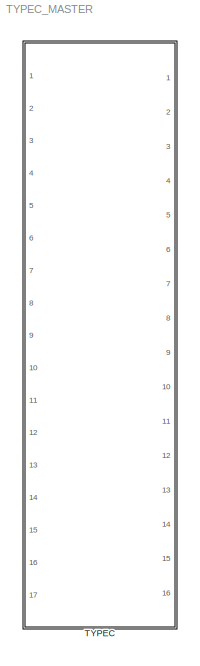
MODEL TYPEC_MASTER
KIND library
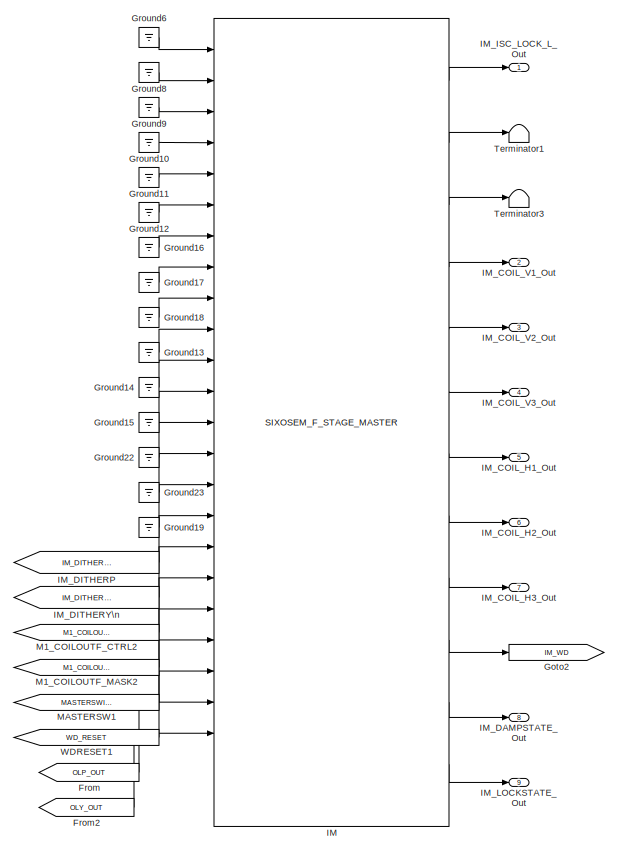
[diagram: TYPEC - part 1/3, top left region]
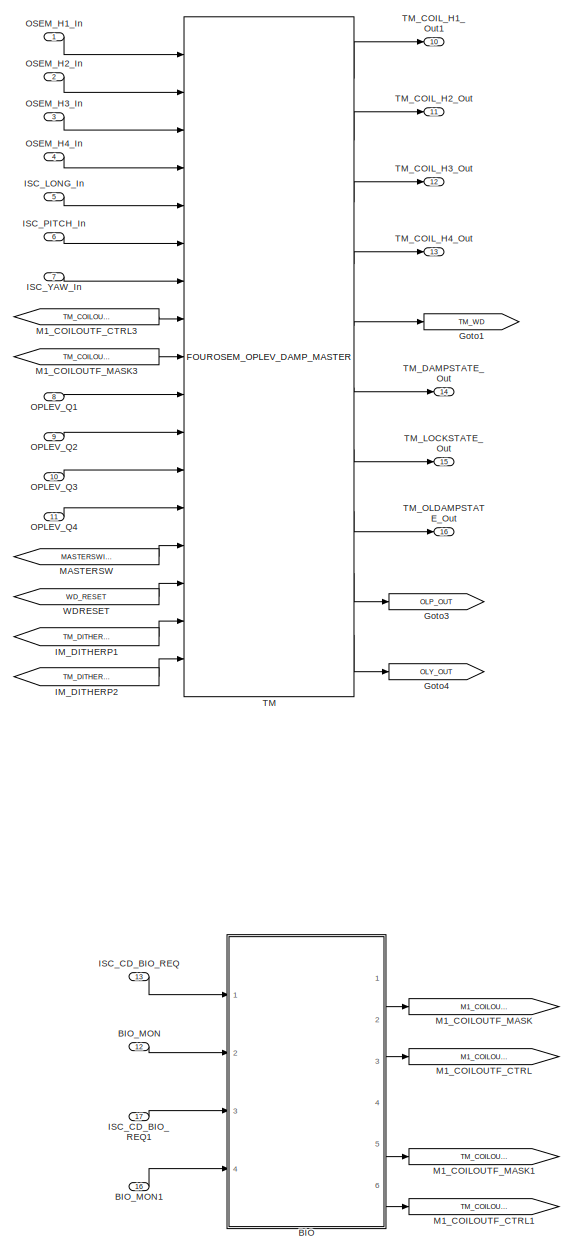
[diagram: TYPEC - part 2/3, bottom left region]
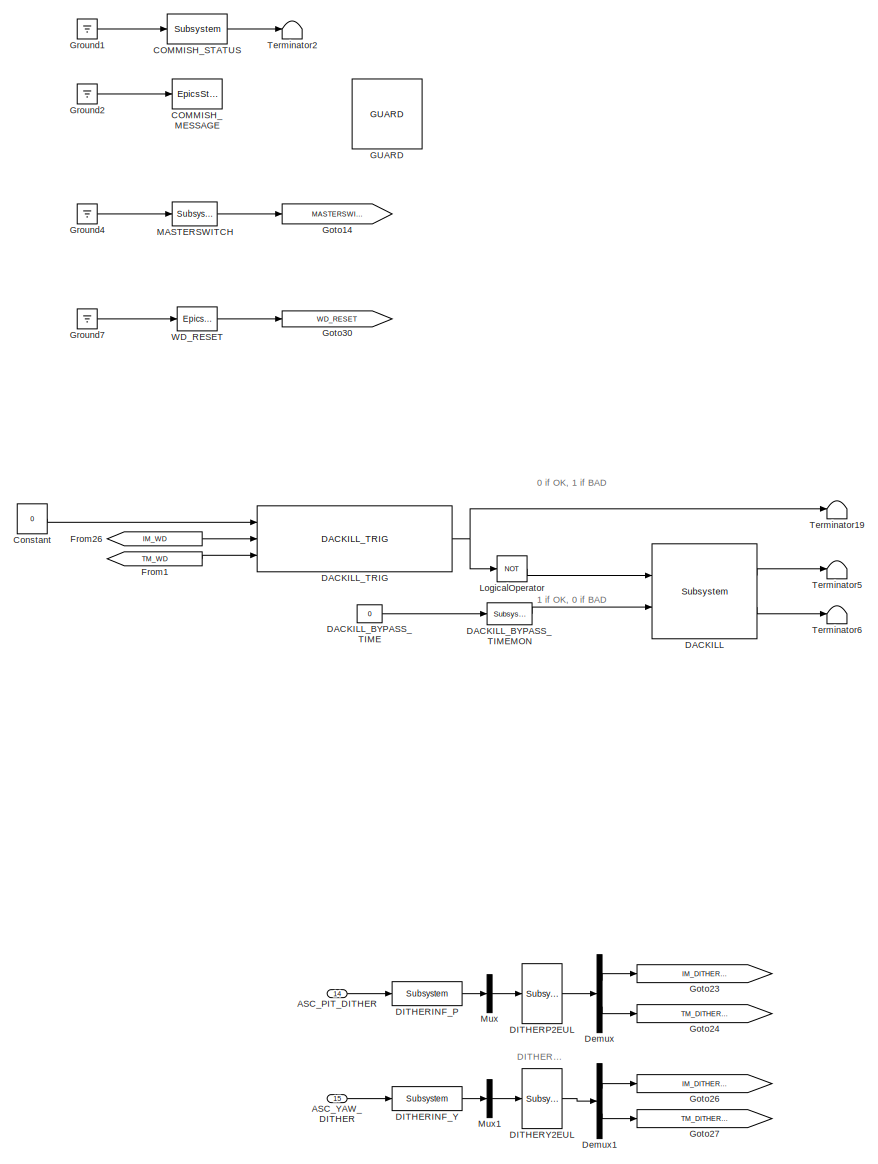
[diagram: TYPEC - part 3/3, bottom right region]
BLOCK [SubSystem] TYPEC
  AttributesFormatString = %<Description>
  Description = TYPEC MASTER
  Ports = [17, 16]
  RequestExecContextInheritance = off
  SID = 132
  Variant = off
BLOCK [Inport] TYPEC/ASC_PIT_DITHER
  IconDisplay = Port number
  Port = 14
  SID = 146
BLOCK [Inport] TYPEC/ASC_YAW_DITHER
  IconDisplay = Port number
  Port = 15
  SID = 147
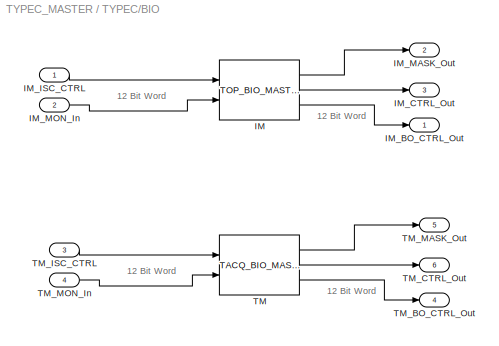
BLOCK [SubSystem] TYPEC/BIO
  Ports = [4, 6]
  RequestExecContextInheritance = off
  SID = 150
  Variant = off
BLOCK [Reference] TYPEC/BIO/IM  REF=STATE_BIO_MASTER/TOP_BIO_MASTER
  Ports = [2, 3]
  SID = 155
  SourceBlock = STATE_BIO_MASTER/TOP_BIO_MASTER
  SourceType = SubSystem
BLOCK [Outport] TYPEC/BIO/IM_BO_CTRL_Out
  IconDisplay = Port number
  SID = 157
BLOCK [Outport] TYPEC/BIO/IM_CTRL_Out
  IconDisplay = Port number
  Port = 3
  SID = 159
BLOCK [Inport] TYPEC/BIO/IM_ISC_CTRL
  IconDisplay = Port number
  SID = 151
BLOCK [Outport] TYPEC/BIO/IM_MASK_Out
  IconDisplay = Port number
  Port = 2
  SID = 158
BLOCK [Inport] TYPEC/BIO/IM_MON_In
  IconDisplay = Port number
  Port = 2
  SID = 152
BLOCK [Reference] TYPEC/BIO/TM  REF=STATE_BIO_MASTER/TACQ_BIO_MASTER
  Ports = [2, 3]
  SID = 156
  SourceBlock = STATE_BIO_MASTER/TACQ_BIO_MASTER
  SourceType = SubSystem
BLOCK [Outport] TYPEC/BIO/TM_BO_CTRL_Out
  IconDisplay = Port number
  Port = 4
  SID = 160
BLOCK [Outport] TYPEC/BIO/TM_CTRL_Out
  IconDisplay = Port number
  Port = 6
  SID = 162
BLOCK [Inport] TYPEC/BIO/TM_ISC_CTRL
  IconDisplay = Port number
  Port = 3
  SID = 153
BLOCK [Outport] TYPEC/BIO/TM_MASK_Out
  IconDisplay = Port number
  Port = 5
  SID = 161
BLOCK [Inport] TYPEC/BIO/TM_MON_In
  IconDisplay = Port number
  Port = 4
  SID = 154
BLOCK [Inport] TYPEC/BIO_MON
  IconDisplay = Port number
  Port = 12
  SID = 144
BLOCK [Inport] TYPEC/BIO_MON1
  IconDisplay = Port number
  Port = 16
  SID = 148
BLOCK [Reference] TYPEC/COMMISH_MESSAGE  REF=cdsEpicsStringIn/EpicsStringIn
  AttributesFormatString = %<Tag>
  Description = cdsEpicsStringIn
  Ports = [1]
  SID = 167
  SourceBlock = cdsEpicsStringIn/EpicsStringIn
  SourceType = SubSystem
  Tag = cdsEpicsStringIn
BLOCK [Reference] TYPEC/COMMISH_STATUS  REF=cdsEpicsBinIn/Subsystem
  AttributesFormatString = %<Tag>
  Description = Purpose:                                                                            \nCreate an EPICS binary (0 or 1) input channel to the FE realtime controls.          \n                                                                                    \nOperation:                                                                          \nOutputs value from an EPICS ai record. Value is binary i...<+252ch>
  Ports = [1, 1]
  SID = 168
  SourceBlock = cdsEpicsBinIn/Subsystem
  SourceType = SubSystem
  Tag = cdsEpicsBinIn
BLOCK [Constant] TYPEC/Constant
  SID = 169
  Value = 0
BLOCK [Reference] TYPEC/DACKILL  REF=cdsDacKill/Subsystem
  AttributesFormatString = %<Description>
  Description = cdsDacKill
  Ports = [2, 2]
  SID = 170
  SourceBlock = cdsDacKill/Subsystem
  SourceType = SubSystem
BLOCK [Constant] TYPEC/DACKILL_BYPASS_TIME
  SID = 171
  Value = 0
BLOCK [Reference] TYPEC/DACKILL_BYPASS_TIMEMON  REF=cdsEpicsOut/Subsystem
  AttributesFormatString = %<Tag>
  Description = Purpose:                                          \nOutput a FE signal to an EPICS channel.           \n                                                  \nOperation:                                        \nTakes input value and passes it to EPICS record.  \n                                                  \nUsage:                                            \nName the part with the desired EPICS...<+14ch>
  Ports = [1, 1]
  SID = 172
  SourceBlock = cdsEpicsOut/Subsystem
  SourceType = SubSystem
  Tag = cdsEpicsOutput
BLOCK [Reference] TYPEC/DACKILL_TRIG  REF=VIS_LIB/DACKILL_TRIG
  Ports = [3, 1]
  SID = 173
  SourceBlock = VIS_LIB/DACKILL_TRIG
  SourceType = SubSystem
BLOCK [Reference] TYPEC/DITHERINF_P  REF=cdsFilt/Subsystem
  AttributesFormatString = %<Tag>
  Description = Purpose:                                                                                                                                                                                                                                  \nStandard CDS IIR filter module.                                                                                                                                     ...<+1302ch>
  Ports = [1, 1]
  SID = 174
  SourceBlock = cdsFilt/Subsystem
  SourceType = SubSystem
  Tag = cdsFilt
BLOCK [Reference] TYPEC/DITHERINF_Y  REF=cdsFilt/Subsystem
  AttributesFormatString = %<Tag>
  Description = Purpose:                                                                                                                                                                                                                                  \nStandard CDS IIR filter module.                                                                                                                                     ...<+1302ch>
  Ports = [1, 1]
  SID = 175
  SourceBlock = cdsFilt/Subsystem
  SourceType = SubSystem
  Tag = cdsFilt
BLOCK [Reference] TYPEC/DITHERP2EUL  REF=cdsMuxMatrix/Subsystem
  AttributesFormatString = %<Tag>
  Description = Any size matrix. Inputs and outputs must be connected using Mux and Demux parts.
  Ports = [1, 1]
  SID = 176
  SourceBlock = cdsMuxMatrix/Subsystem
  SourceType = SubSystem
  Tag = cdsMuxMatrix
BLOCK [Reference] TYPEC/DITHERY2EUL  REF=cdsMuxMatrix/Subsystem
  AttributesFormatString = %<Tag>
  Description = Any size matrix. Inputs and outputs must be connected using Mux and Demux parts.
  Ports = [1, 1]
  SID = 177
  SourceBlock = cdsMuxMatrix/Subsystem
  SourceType = SubSystem
  Tag = cdsMuxMatrix
BLOCK [Demux] TYPEC/Demux
  DisplayOption = bar
  Outputs = 2
  Ports = [1, 2]
  SID = 178
BLOCK [Demux] TYPEC/Demux1
  DisplayOption = bar
  Outputs = 2
  Ports = [1, 2]
  SID = 179
BLOCK [From] TYPEC/From
  GotoTag = OLP_OUT
  SID = 180
BLOCK [From] TYPEC/From1
  CloseFcn = tagdialog Close
  GotoTag = TM_WD
  SID = 181
BLOCK [From] TYPEC/From2
  GotoTag = OLY_OUT
  SID = 182
BLOCK [From] TYPEC/From26
  CloseFcn = tagdialog Close
  GotoTag = IM_WD
  SID = 183
BLOCK [Reference] TYPEC/GUARD  REF=ISC_common/GUARD
  Ports = []
  SID = 184
  SourceBlock = ISC_common/GUARD
  SourceType = SubSystem
BLOCK [Goto] TYPEC/Goto1
  GotoTag = TM_WD
  SID = 185
BLOCK [Goto] TYPEC/Goto14
  GotoTag = MASTERSWITCH
  SID = 186
BLOCK [Goto] TYPEC/Goto2
  GotoTag = IM_WD
  SID = 187
BLOCK [Goto] TYPEC/Goto23
  GotoTag = IM_DITHER_PIT
  SID = 188
BLOCK [Goto] TYPEC/Goto24
  GotoTag = TM_DITHER_PIT
  SID = 189
BLOCK [Goto] TYPEC/Goto26
  GotoTag = IM_DITHER_YAW
  SID = 190
BLOCK [Goto] TYPEC/Goto27
  GotoTag = TM_DITHER_YAW
  SID = 191
BLOCK [Goto] TYPEC/Goto3
  GotoTag = OLP_OUT
  SID = 192
BLOCK [Goto] TYPEC/Goto30
  GotoTag = WD_RESET
  SID = 193
BLOCK [Goto] TYPEC/Goto4
  GotoTag = OLY_OUT
  SID = 194
BLOCK [Ground] TYPEC/Ground1
  SID = 195
BLOCK [Ground] TYPEC/Ground10
  SID = 196
BLOCK [Ground] TYPEC/Ground11
  SID = 197
BLOCK [Ground] TYPEC/Ground12
  SID = 198
BLOCK [Ground] TYPEC/Ground13
  SID = 199
BLOCK [Ground] TYPEC/Ground14
  SID = 200
BLOCK [Ground] TYPEC/Ground15
  SID = 201
BLOCK [Ground] TYPEC/Ground16
  SID = 202
BLOCK [Ground] TYPEC/Ground17
  SID = 203
BLOCK [Ground] TYPEC/Ground18
  SID = 204
BLOCK [Ground] TYPEC/Ground19
  SID = 205
BLOCK [Ground] TYPEC/Ground2
  SID = 206
BLOCK [Ground] TYPEC/Ground22
  SID = 207
BLOCK [Ground] TYPEC/Ground23
  SID = 208
BLOCK [Ground] TYPEC/Ground4
  SID = 209
BLOCK [Ground] TYPEC/Ground6
  SID = 210
BLOCK [Ground] TYPEC/Ground7
  SID = 211
BLOCK [Ground] TYPEC/Ground8
  SID = 212
BLOCK [Ground] TYPEC/Ground9
  SID = 213
BLOCK [Reference] TYPEC/IM  REF=SIXOSEM_F_STAGE_MASTER/SIXOSEM_F_STAGE_MASTER
  Description = SIXOSEMSTAGE_FACE_MASTER
  Ports = [25, 12]
  SID = 214
  SourceBlock = SIXOSEM_F_STAGE_MASTER/SIXOSEM_F_STAGE_MASTER
  SourceType = SubSystem
BLOCK [Outport] TYPEC/IM_COIL_H1_Out
  IconDisplay = Port number
  Port = 5
  SID = 247
BLOCK [Outport] TYPEC/IM_COIL_H2_Out
  IconDisplay = Port number
  Port = 6
  SID = 248
BLOCK [Outport] TYPEC/IM_COIL_H3_Out
  IconDisplay = Port number
  Port = 7
  SID = 249
BLOCK [Outport] TYPEC/IM_COIL_V1_Out
  IconDisplay = Port number
  Port = 2
  SID = 244
BLOCK [Outport] TYPEC/IM_COIL_V2_Out
  IconDisplay = Port number
  Port = 3
  SID = 245
BLOCK [Outport] TYPEC/IM_COIL_V3_Out
  IconDisplay = Port number
  Port = 4
  SID = 246
BLOCK [Outport] TYPEC/IM_DAMPSTATE_Out
  IconDisplay = Port number
  Port = 8
  SID = 250
BLOCK [From] TYPEC/IM_DITHERP
  CloseFcn = tagdialog Close
  GotoTag = IM_DITHER_PIT
  SID = 215
BLOCK [From] TYPEC/IM_DITHERP1
  CloseFcn = tagdialog Close
  GotoTag = TM_DITHER_PIT
  SID = 216
BLOCK [From] TYPEC/IM_DITHERP2
  CloseFcn = tagdialog Close
  GotoTag = TM_DITHER_YAW
  SID = 217
BLOCK [From] TYPEC/IM_DITHERY\n
  CloseFcn = tagdialog Close
  GotoTag = IM_DITHER_YAW
  SID = 218
BLOCK [Outport] TYPEC/IM_ISC_LOCK_L_Out
  IconDisplay = Port number
  SID = 243
BLOCK [Outport] TYPEC/IM_LOCKSTATE_Out
  IconDisplay = Port number
  Port = 9
  SID = 251
BLOCK [Inport] TYPEC/ISC_CD_BIO_REQ
  IconDisplay = Port number
  Port = 13
  SID = 145
BLOCK [Inport] TYPEC/ISC_CD_BIO_REQ1
  IconDisplay = Port number
  Port = 17
  SID = 149
BLOCK [Inport] TYPEC/ISC_LONG_In
  IconDisplay = Port number
  Port = 5
  SID = 137
BLOCK [Inport] TYPEC/ISC_PITCH_In
  IconDisplay = Port number
  Port = 6
  SID = 138
BLOCK [Inport] TYPEC/ISC_YAW_In
  IconDisplay = Port number
  Port = 7
  SID = 139
BLOCK [Logic] TYPEC/LogicalOperator
  AllPortsSameDT = off
  Operator = NOT
  OutDataTypeStr = boolean
  Ports = [1, 1]
  SID = 219
BLOCK [Goto] TYPEC/M1_COILOUTF_CTRL
  GotoTag = M1_COILOUTF_CTRL
  SID = 220
BLOCK [Goto] TYPEC/M1_COILOUTF_CTRL1
  GotoTag = TM_COILOUTF_CTRL
  SID = 221
BLOCK [From] TYPEC/M1_COILOUTF_CTRL2
  CloseFcn = tagdialog Close
  GotoTag = M1_COILOUTF_CTRL
  SID = 222
BLOCK [From] TYPEC/M1_COILOUTF_CTRL3
  CloseFcn = tagdialog Close
  GotoTag = TM_COILOUTF_CTRL
  SID = 223
BLOCK [Goto] TYPEC/M1_COILOUTF_MASK
  GotoTag = M1_COILOUTF_MASK
  SID = 224
BLOCK [Goto] TYPEC/M1_COILOUTF_MASK1
  GotoTag = TM_COILOUTF_MASK
  SID = 225
BLOCK [From] TYPEC/M1_COILOUTF_MASK2
  CloseFcn = tagdialog Close
  GotoTag = M1_COILOUTF_MASK
  SID = 226
BLOCK [From] TYPEC/M1_COILOUTF_MASK3
  CloseFcn = tagdialog Close
  GotoTag = TM_COILOUTF_MASK
  SID = 227
BLOCK [From] TYPEC/MASTERSW
  CloseFcn = tagdialog Close
  GotoTag = MASTERSWITCH
  SID = 228
BLOCK [From] TYPEC/MASTERSW1
  CloseFcn = tagdialog Close
  GotoTag = MASTERSWITCH
  SID = 229
BLOCK [Reference] TYPEC/MASTERSWITCH  REF=cdsEpicsBinIn/Subsystem
  AttributesFormatString = %<Tag>
  Description = Purpose:                                                                            \nCreate an EPICS binary (0 or 1) input channel to the FE realtime controls.          \n                                                                                    \nOperation:                                                                          \nOutputs value from an EPICS ai record. Value is binary i...<+252ch>
  Ports = [1, 1]
  SID = 230
  SourceBlock = cdsEpicsBinIn/Subsystem
  SourceType = SubSystem
  Tag = cdsEpicsBinIn
BLOCK [Mux] TYPEC/Mux
  DisplayOption = bar
  Inputs = 1
  Ports = [1, 1]
  SID = 231
BLOCK [Mux] TYPEC/Mux1
  DisplayOption = bar
  Inputs = 1
  Ports = [1, 1]
  SID = 232
BLOCK [Inport] TYPEC/OPLEV_Q1
  IconDisplay = Port number
  Port = 8
  SID = 140
BLOCK [Inport] TYPEC/OPLEV_Q2
  IconDisplay = Port number
  Port = 9
  SID = 141
BLOCK [Inport] TYPEC/OPLEV_Q3
  IconDisplay = Port number
  Port = 10
  SID = 142
BLOCK [Inport] TYPEC/OPLEV_Q4
  IconDisplay = Port number
  Port = 11
  SID = 143
BLOCK [Inport] TYPEC/OSEM_H1_In
  IconDisplay = Port number
  SID = 133
BLOCK [Inport] TYPEC/OSEM_H2_In
  IconDisplay = Port number
  Port = 2
  SID = 134
BLOCK [Inport] TYPEC/OSEM_H3_In
  IconDisplay = Port number
  Port = 3
  SID = 135
BLOCK [Inport] TYPEC/OSEM_H4_In
  IconDisplay = Port number
  Port = 4
  SID = 136
BLOCK [Reference] TYPEC/TM  REF=FOUROSEM_OPLEV_DAMP_MASTER/FOUROSEM_OPLEV_DAMP_MASTER
  Ports = [17, 10]
  SID = 233
  SourceBlock = FOUROSEM_OPLEV_DAMP_MASTER/FOUROSEM_OPLEV_DAMP_MASTER
  SourceType = SubSystem
BLOCK [Outport] TYPEC/TM_COIL_H1_Out1
  IconDisplay = Port number
  Port = 10
  SID = 252
BLOCK [Outport] TYPEC/TM_COIL_H2_Out
  IconDisplay = Port number
  Port = 11
  SID = 253
BLOCK [Outport] TYPEC/TM_COIL_H3_Out
  IconDisplay = Port number
  Port = 12
  SID = 254
BLOCK [Outport] TYPEC/TM_COIL_H4_Out
  IconDisplay = Port number
  Port = 13
  SID = 255
BLOCK [Outport] TYPEC/TM_DAMPSTATE_Out
  IconDisplay = Port number
  Port = 14
  SID = 256
BLOCK [Outport] TYPEC/TM_LOCKSTATE_Out
  IconDisplay = Port number
  Port = 15
  SID = 257
BLOCK [Outport] TYPEC/TM_OLDAMPSTATE_Out
  IconDisplay = Port number
  Port = 16
  SID = 258
BLOCK [Terminator] TYPEC/Terminator1
  SID = 234
BLOCK [Terminator] TYPEC/Terminator19
  SID = 235
BLOCK [Terminator] TYPEC/Terminator2
  SID = 236
BLOCK [Terminator] TYPEC/Terminator3
  SID = 237
BLOCK [Terminator] TYPEC/Terminator5
  SID = 238
BLOCK [Terminator] TYPEC/Terminator6
  SID = 239
BLOCK [From] TYPEC/WDRESET
  CloseFcn = tagdialog Close
  GotoTag = WD_RESET
  SID = 240
BLOCK [From] TYPEC/WDRESET1
  CloseFcn = tagdialog Close
  GotoTag = WD_RESET
  SID = 241
BLOCK [Reference] TYPEC/WD_RESET  REF=cdsEpicsMomentary/EpicsMomentary
  AttributesFormatString = %<Tag>
  Ports = [1, 1]
  SID = 242
  SourceBlock = cdsEpicsMomentary/EpicsMomentary
  SourceType = SubSystem
  Tag = cdsEpicsMomentary
ANNOTATION TYPEC: DITHER PATHs\n\n\n\n\n\n\n\n\n\n\n\n\n\n\n. .
ANNOTATION TYPEC: 0 if OK, 1 if BAD
ANNOTATION TYPEC: 1 if OK, 0 if BAD
ANNOTATION TYPEC/BIO: 12 Bit Word
LINE TYPEC/ASC_PIT_DITHER:1 -> TYPEC/DITHERINF_P:1
LINE TYPEC/ASC_YAW_DITHER:1 -> TYPEC/DITHERINF_Y:1
LINE TYPEC/BIO/IM:1 -> TYPEC/BIO/IM_MASK_Out:1
LINE TYPEC/BIO/IM:2 -> TYPEC/BIO/IM_CTRL_Out:1
LINE TYPEC/BIO/IM:3 -> TYPEC/BIO/IM_BO_CTRL_Out:1
LINE TYPEC/BIO/IM_ISC_CTRL:1 -> TYPEC/BIO/IM:1
LINE TYPEC/BIO/IM_MON_In:1 -> TYPEC/BIO/IM:2
LINE TYPEC/BIO/TM:1 -> TYPEC/BIO/TM_MASK_Out:1
LINE TYPEC/BIO/TM:2 -> TYPEC/BIO/TM_CTRL_Out:1
LINE TYPEC/BIO/TM:3 -> TYPEC/BIO/TM_BO_CTRL_Out:1
LINE TYPEC/BIO/TM_ISC_CTRL:1 -> TYPEC/BIO/TM:1
LINE TYPEC/BIO/TM_MON_In:1 -> TYPEC/BIO/TM:2
LINE TYPEC/BIO:2 -> TYPEC/M1_COILOUTF_MASK:1
LINE TYPEC/BIO:3 -> TYPEC/M1_COILOUTF_CTRL:1
LINE TYPEC/BIO:5 -> TYPEC/M1_COILOUTF_MASK1:1
LINE TYPEC/BIO:6 -> TYPEC/M1_COILOUTF_CTRL1:1
LINE TYPEC/BIO_MON1:1 -> TYPEC/BIO:4
LINE TYPEC/BIO_MON:1 -> TYPEC/BIO:2
LINE TYPEC/COMMISH_STATUS:1 -> TYPEC/Terminator2:1
LINE TYPEC/Constant:1 -> TYPEC/DACKILL_TRIG:1
LINE TYPEC/DACKILL:1 -> TYPEC/Terminator5:1
LINE TYPEC/DACKILL:2 -> TYPEC/Terminator6:1
LINE TYPEC/DACKILL_BYPASS_TIME:1 -> TYPEC/DACKILL_BYPASS_TIMEMON:1
LINE TYPEC/DACKILL_BYPASS_TIMEMON:1 -> TYPEC/DACKILL:2
NET TYPEC/DACKILL_TRIG:1 -> TYPEC/LogicalOperator:1, TYPEC/Terminator19:1
LINE TYPEC/DITHERINF_P:1 -> TYPEC/Mux:1
LINE TYPEC/DITHERINF_Y:1 -> TYPEC/Mux1:1
LINE TYPEC/DITHERP2EUL:1 -> TYPEC/Demux:1
LINE TYPEC/DITHERY2EUL:1 -> TYPEC/Demux1:1
LINE TYPEC/Demux1:1 -> TYPEC/Goto26:1
LINE TYPEC/Demux1:2 -> TYPEC/Goto27:1
LINE TYPEC/Demux:1 -> TYPEC/Goto23:1
LINE TYPEC/Demux:2 -> TYPEC/Goto24:1
LINE TYPEC/From1:1 -> TYPEC/DACKILL_TRIG:3
LINE TYPEC/From26:1 -> TYPEC/DACKILL_TRIG:2
LINE TYPEC/From2:1 -> TYPEC/IM:23
LINE TYPEC/From:1 -> TYPEC/IM:22
LINE TYPEC/Ground10:1 -> TYPEC/IM:4
LINE TYPEC/Ground11:1 -> TYPEC/IM:5
LINE TYPEC/Ground12:1 -> TYPEC/IM:6
LINE TYPEC/Ground13:1 -> TYPEC/IM:10
LINE TYPEC/Ground14:1 -> TYPEC/IM:11
LINE TYPEC/Ground15:1 -> TYPEC/IM:12
LINE TYPEC/Ground16:1 -> TYPEC/IM:7
LINE TYPEC/Ground17:1 -> TYPEC/IM:8
LINE TYPEC/Ground18:1 -> TYPEC/IM:9
LINE TYPEC/Ground19:1 -> TYPEC/IM:15
LINE TYPEC/Ground1:1 -> TYPEC/COMMISH_STATUS:1
LINE TYPEC/Ground22:1 -> TYPEC/IM:13
LINE TYPEC/Ground23:1 -> TYPEC/IM:14
LINE TYPEC/Ground2:1 -> TYPEC/COMMISH_MESSAGE:1
LINE TYPEC/Ground4:1 -> TYPEC/MASTERSWITCH:1
LINE TYPEC/Ground6:1 -> TYPEC/IM:1
LINE TYPEC/Ground7:1 -> TYPEC/WD_RESET:1
LINE TYPEC/Ground8:1 -> TYPEC/IM:2
LINE TYPEC/Ground9:1 -> TYPEC/IM:3
LINE TYPEC/IM:1 -> TYPEC/IM_ISC_LOCK_L_Out:1
LINE TYPEC/IM:10 -> TYPEC/Goto2:1
LINE TYPEC/IM:11 -> TYPEC/IM_DAMPSTATE_Out:1
LINE TYPEC/IM:12 -> TYPEC/IM_LOCKSTATE_Out:1
LINE TYPEC/IM:2 -> TYPEC/Terminator1:1
LINE TYPEC/IM:3 -> TYPEC/Terminator3:1
LINE TYPEC/IM:4 -> TYPEC/IM_COIL_V1_Out:1
LINE TYPEC/IM:5 -> TYPEC/IM_COIL_V2_Out:1
LINE TYPEC/IM:6 -> TYPEC/IM_COIL_V3_Out:1
LINE TYPEC/IM:7 -> TYPEC/IM_COIL_H1_Out:1
LINE TYPEC/IM:8 -> TYPEC/IM_COIL_H2_Out:1
LINE TYPEC/IM:9 -> TYPEC/IM_COIL_H3_Out:1
LINE TYPEC/IM_DITHERP1:1 -> TYPEC/TM:16
LINE TYPEC/IM_DITHERP2:1 -> TYPEC/TM:17
LINE TYPEC/IM_DITHERP:1 -> TYPEC/IM:16
LINE TYPEC/IM_DITHERY\n:1 -> TYPEC/IM:17
LINE TYPEC/ISC_CD_BIO_REQ1:1 -> TYPEC/BIO:3
LINE TYPEC/ISC_CD_BIO_REQ:1 -> TYPEC/BIO:1
LINE TYPEC/ISC_LONG_In:1 -> TYPEC/TM:5
LINE TYPEC/ISC_PITCH_In:1 -> TYPEC/TM:6
LINE TYPEC/ISC_YAW_In:1 -> TYPEC/TM:7
LINE TYPEC/LogicalOperator:1 -> TYPEC/DACKILL:1
LINE TYPEC/M1_COILOUTF_CTRL2:1 -> TYPEC/IM:18
LINE TYPEC/M1_COILOUTF_CTRL3:1 -> TYPEC/TM:8
LINE TYPEC/M1_COILOUTF_MASK2:1 -> TYPEC/IM:19
LINE TYPEC/M1_COILOUTF_MASK3:1 -> TYPEC/TM:9
LINE TYPEC/MASTERSW1:1 -> TYPEC/IM:20
LINE TYPEC/MASTERSW:1 -> TYPEC/TM:14
LINE TYPEC/MASTERSWITCH:1 -> TYPEC/Goto14:1
LINE TYPEC/Mux1:1 -> TYPEC/DITHERY2EUL:1
LINE TYPEC/Mux:1 -> TYPEC/DITHERP2EUL:1
LINE TYPEC/OPLEV_Q1:1 -> TYPEC/TM:10
LINE TYPEC/OPLEV_Q2:1 -> TYPEC/TM:11
LINE TYPEC/OPLEV_Q3:1 -> TYPEC/TM:12
LINE TYPEC/OPLEV_Q4:1 -> TYPEC/TM:13
LINE TYPEC/OSEM_H1_In:1 -> TYPEC/TM:1
LINE TYPEC/OSEM_H2_In:1 -> TYPEC/TM:2
LINE TYPEC/OSEM_H3_In:1 -> TYPEC/TM:3
LINE TYPEC/OSEM_H4_In:1 -> TYPEC/TM:4
LINE TYPEC/TM:1 -> TYPEC/TM_COIL_H1_Out1:1
LINE TYPEC/TM:10 -> TYPEC/Goto4:1
LINE TYPEC/TM:2 -> TYPEC/TM_COIL_H2_Out:1
LINE TYPEC/TM:3 -> TYPEC/TM_COIL_H3_Out:1
LINE TYPEC/TM:4 -> TYPEC/TM_COIL_H4_Out:1
LINE TYPEC/TM:5 -> TYPEC/Goto1:1
LINE TYPEC/TM:6 -> TYPEC/TM_DAMPSTATE_Out:1
LINE TYPEC/TM:7 -> TYPEC/TM_LOCKSTATE_Out:1
LINE TYPEC/TM:8 -> TYPEC/TM_OLDAMPSTATE_Out:1
LINE TYPEC/TM:9 -> TYPEC/Goto3:1
LINE TYPEC/WDRESET1:1 -> TYPEC/IM:21
LINE TYPEC/WDRESET:1 -> TYPEC/TM:15
LINE TYPEC/WD_RESET:1 -> TYPEC/Goto30:1
note: NET lines group one-source signal fan-out (src -> all destinations, sorted); 1:1 wires keep LINE
